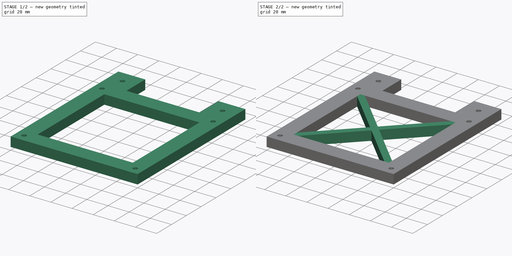
[diagram: build sequence overview — one tinted view per stage of 2, left to right]
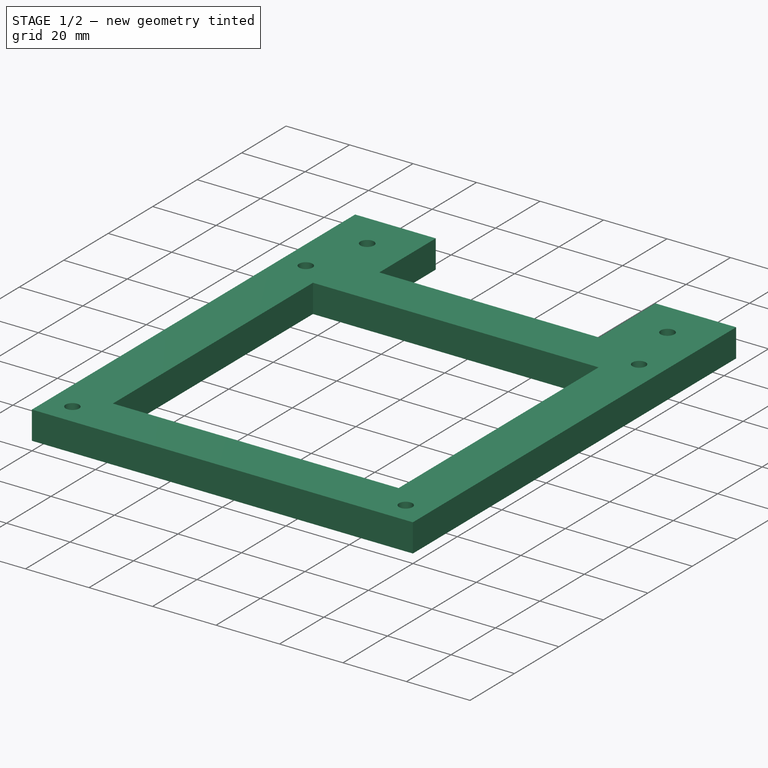
[diagram: stage 1 of 2 — iso view after this stage's code; geometry added in this stage tinted green]
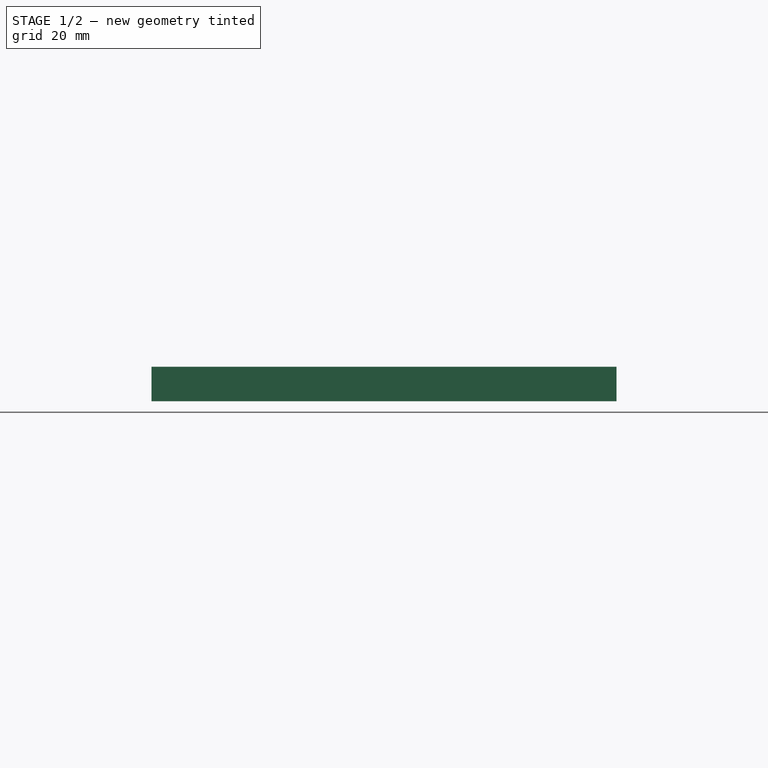
[diagram: stage 1 of 2 — front view after this stage's code; geometry added in this stage tinted green]
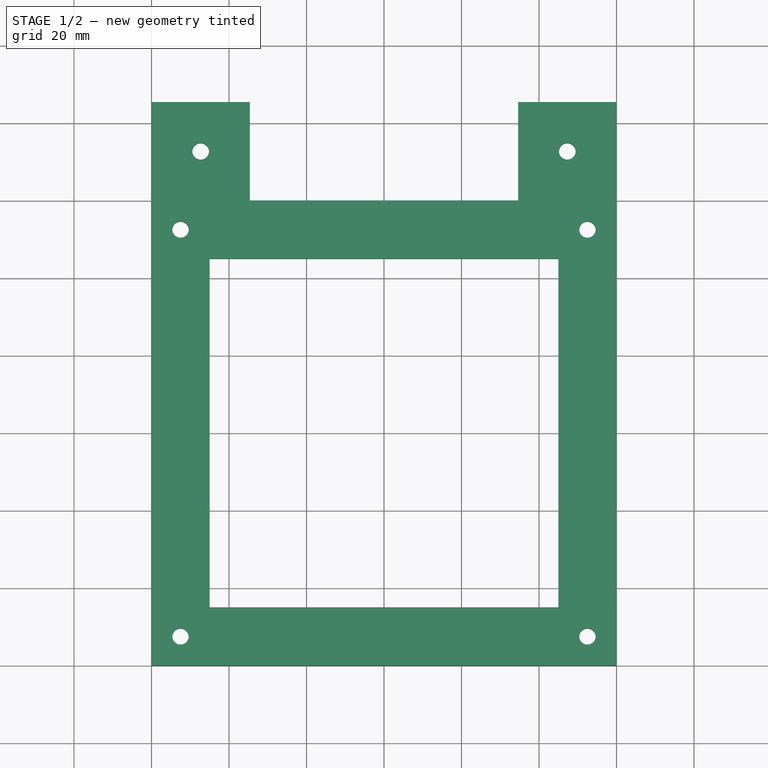
[diagram: stage 1 of 2 — top view after this stage's code; geometry added in this stage tinted green]
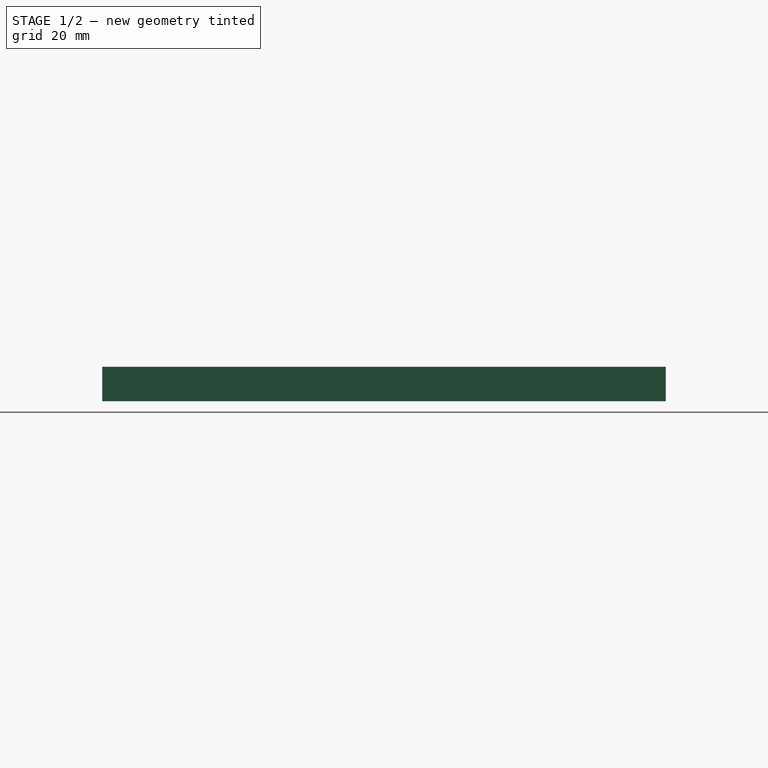
[diagram: stage 1 of 2 — right view after this stage's code; geometry added in this stage tinted green]
FCSTD DOCUMENT  (FreeCAD 0.20R29603 (Git))
Label: Single_Fan_Bracket
License: All rights reserved
LicenseURL: http://en.wikipedia.org/wiki/All_rights_reserved
objects: Sketcher::SketchObject×3, PartDesign::Pad×3, PartDesign::Body×1
note: 10 computed .brp shape members not serialized (recipe doc carries the construction recipe); baked Part::Feature solids carry a one-line shape summary decoded from their .brp

FEATURE [Sketcher::SketchObject] Sketch
  FullyConstrained = true
  MapMode = 5
  Support = -> [XY_Plane]
  sketch-geometry (19):
    g0: LineSegment StartX=-52.5 StartY=52.5 StartZ=0 EndX=52.5 EndY=52.5 EndZ=0
    g1: LineSegment StartX=52.5 StartY=52.5 StartZ=0 EndX=52.5 EndY=-52.5 EndZ=0
    g2: LineSegment StartX=52.5 StartY=-52.5 StartZ=0 EndX=-52.5 EndY=-52.5 EndZ=0
    g3: LineSegment StartX=-52.5 StartY=-52.5 StartZ=0 EndX=-52.5 EndY=52.5 EndZ=0
    g4: LineSegment StartX=-60 StartY=60 StartZ=0 EndX=60 EndY=60 EndZ=0
    g5: LineSegment StartX=60 StartY=60 StartZ=0 EndX=60 EndY=-60 EndZ=0
    g6: LineSegment StartX=60 StartY=-60 StartZ=0 EndX=-60 EndY=-60 EndZ=0
    g7: LineSegment StartX=-60 StartY=-60 StartZ=0 EndX=-60 EndY=60 EndZ=0
    g8: LineSegment StartX=-45 StartY=45 StartZ=0 EndX=45 EndY=45 EndZ=0
    g9: LineSegment StartX=45 StartY=45 StartZ=0 EndX=45 EndY=-45 EndZ=0
    g10: LineSegment StartX=45 StartY=-45 StartZ=0 EndX=-45 EndY=-45 EndZ=0
    g11: LineSegment StartX=-45 StartY=-45 StartZ=0 EndX=-45 EndY=45 EndZ=0
    g12: LineSegment StartX=-52.5 StartY=52.5 StartZ=0 EndX=-60 EndY=60 EndZ=0
    g13: LineSegment StartX=-52.5 StartY=52.5 StartZ=0 EndX=-45 EndY=45 EndZ=0
    g14: Circle CenterX=-52.5 CenterY=52.5 CenterZ=0 NormalX=0 NormalY=0 NormalZ=1 AngleXU=0 Radius=2.1082
    g15: Circle CenterX=52.5 CenterY=52.5 CenterZ=0 NormalX=0 NormalY=0 NormalZ=1 AngleXU=0 Radius=2.1082
    g16: Circle CenterX=-52.5 CenterY=-52.5 CenterZ=0 NormalX=0 NormalY=0 NormalZ=1 AngleXU=0 Radius=2.1082
    g17: Circle CenterX=52.5 CenterY=-52.5 CenterZ=0 NormalX=0 NormalY=0 NormalZ=1 AngleXU=0 Radius=2.1082
    g18: LineSegment StartX=45 StartY=45 StartZ=0 EndX=52.5 EndY=52.5 EndZ=0
  constraints (48):
    c: Coincident(g0,g1)
    c: Coincident(g1,g2)
    c: Coincident(g2,g3)
    c: Coincident(g3,g0)
    c: Horizontal(g0)
    c: Horizontal(g2)
    c: Vertical(g1)
    c: Vertical(g3)
    c: Symmetric(g2,g0,g-1)
    c: Coincident(g4,g5)
    c: Coincident(g5,g6)
    c: Coincident(g6,g7)
    c: Coincident(g7,g4)
    c: Horizontal(g4)
    c: Horizontal(g6)
    c: Vertical(g5)
    c: Vertical(g7)
    c: Symmetric(g6,g4,g-1)
    c: Equal(g0,g3)
    c: Equal(g4,g7)
    c: DistanceX(g0,g0) = 105
    c: DistanceX(g4,g4) = 120
    c: Coincident(g8,g9)
    c: Coincident(g9,g10)
    c: Coincident(g10,g11)
    c: Coincident(g11,g8)
    c: Horizontal(g8)
    c: Horizontal(g10)
    c: Vertical(g9)
    c: Vertical(g11)
    c: Coincident(g12,g0)
    c: Coincident(g12,g4)
    c: Coincident(g13,g12)
    c: Coincident(g13,g8)
    c: Equal(g13,g12)
    c: Angle(g13,g0) = 0.785398
    c: Coincident(g14,g0)
    c: Coincident(g15,g0)
    c: Coincident(g16,g2)
    c: Coincident(g17,g1)
    c: Diameter(g17) = 4.2164
    c: Equal(g15,g14)
    c: Equal(g14,g16)
    c: Equal(g16,g17)
    c: Equal(g8,g11)
    c: Coincident(g18,g8)
    c: Coincident(g18,g15)
    c: Equal(g18,g13)
FEATURE [PartDesign::Pad] Pad
  Direction = (0,0,1)
  Length = 8.89
  Length2 = 10
  Profile = -> Sketch
  ReferenceAxis = -> Sketch [N_Axis]
  Type = 0
FEATURE [Sketcher::SketchObject] Sketch001
  ExternalGeometry = -> [Pad]
  FullyConstrained = true
  MapMode = 5
  Placement = pos=(0,0,0) rot=(1,0,0;3.14159rad)
  Support = -> [Pad]
  sketch-geometry (10):
    g0: Circle CenterX=-47.3 CenterY=-72.7 CenterZ=0 NormalX=0 NormalY=0 NormalZ=1 AngleXU=0 Radius=2.1463
    g1: Circle CenterX=47.3 CenterY=-72.7 CenterZ=0 NormalX=0 NormalY=0 NormalZ=1 AngleXU=0 Radius=2.1463
    g2: LineSegment StartX=-60 StartY=-60 StartZ=0 EndX=-34.6 EndY=-60 EndZ=0
    g3: LineSegment StartX=-34.6 StartY=-60 StartZ=0 EndX=-34.6 EndY=-85.4 EndZ=0
    g4: LineSegment StartX=-34.6 StartY=-85.4 StartZ=0 EndX=-60 EndY=-85.4 EndZ=0
    g5: LineSegment StartX=-60 StartY=-85.4 StartZ=0 EndX=-60 EndY=-60 EndZ=0
    g6: LineSegment StartX=60 StartY=-60 StartZ=0 EndX=34.6 EndY=-60 EndZ=0
    g7: LineSegment StartX=34.6 StartY=-60 StartZ=0 EndX=34.6 EndY=-85.4 EndZ=0
    g8: LineSegment StartX=34.6 StartY=-85.4 StartZ=0 EndX=60 EndY=-85.4 EndZ=0
    g9: LineSegment StartX=60 StartY=-85.4 StartZ=0 EndX=60 EndY=-60 EndZ=0
  constraints (26):
    c: Equal(g0,g1)
    c: Diameter(g0) = 4.2926
    c: Symmetric(g0,g1,g-2)
    c: Coincident(g2,g3)
    c: Coincident(g3,g4)
    c: Coincident(g4,g5)
    c: Coincident(g5,g2)
    c: Horizontal(g2)
    c: Horizontal(g4)
    c: Vertical(g3)
    c: Vertical(g5)
    c: Coincident(g2,g-4)
    c: Coincident(g6,g7)
    c: Coincident(g7,g8)
    c: Coincident(g8,g9)
    c: Coincident(g9,g6)
    c: Horizontal(g6)
    c: Horizontal(g8)
    c: Vertical(g7)
    c: Vertical(g9)
    c: Coincident(g6,g-5)
    c: Equal(g4,g8)
    c: Equal(g5,g4)
    c: Equal(g7,g8)
    c: Symmetric(g2,g3,g0)
    c: DistanceX(g4,g4) = 25.4
FEATURE [PartDesign::Pad] Pad001
  BaseFeature = -> Pad
  Direction = (0,0,-1)
  Length = 8.89
  Length2 = 10
  Profile = -> Sketch001
  ReferenceAxis = -> Sketch001 [N_Axis]
  Reversed = true
  Type = 0
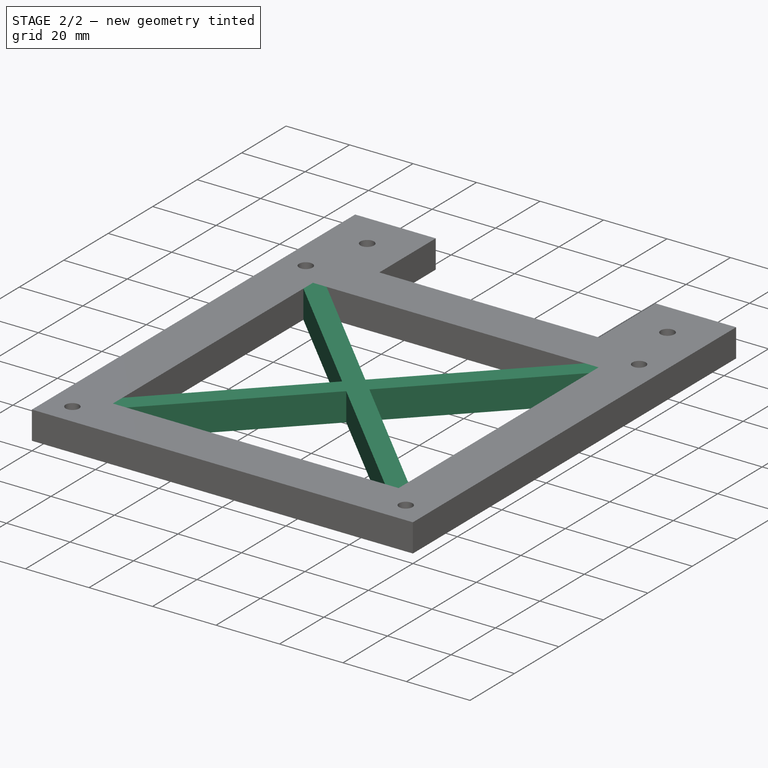
[diagram: stage 2 of 2 — iso view after this stage's code; geometry added in this stage tinted green]
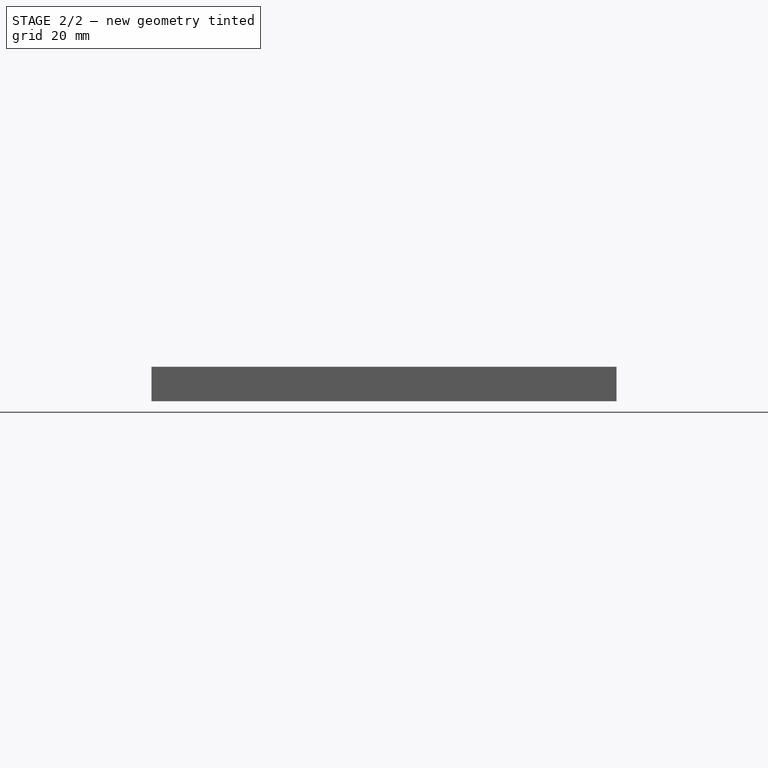
[diagram: stage 2 of 2 — front view after this stage's code; geometry added in this stage tinted green]
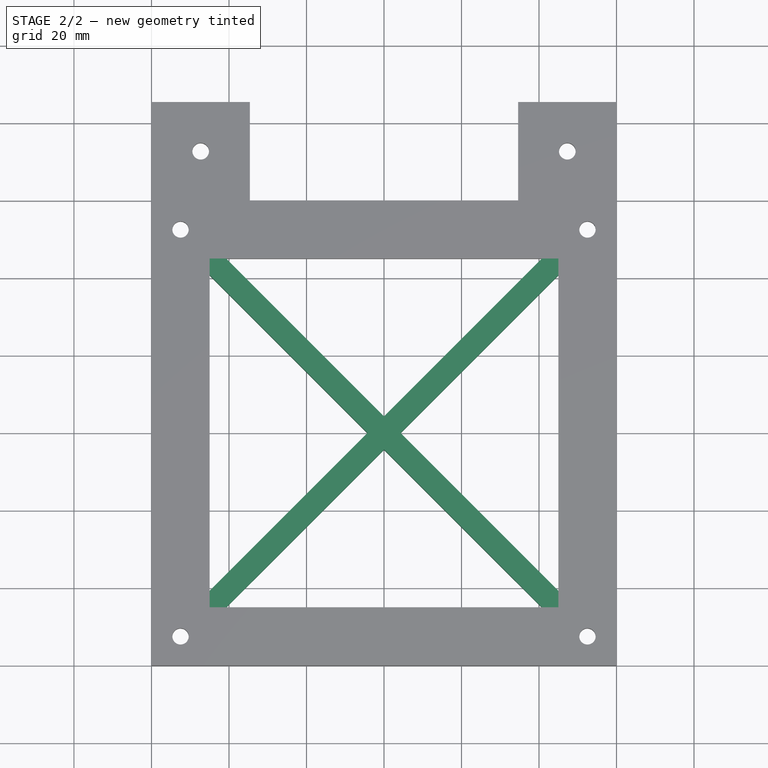
[diagram: stage 2 of 2 — top view after this stage's code; geometry added in this stage tinted green]
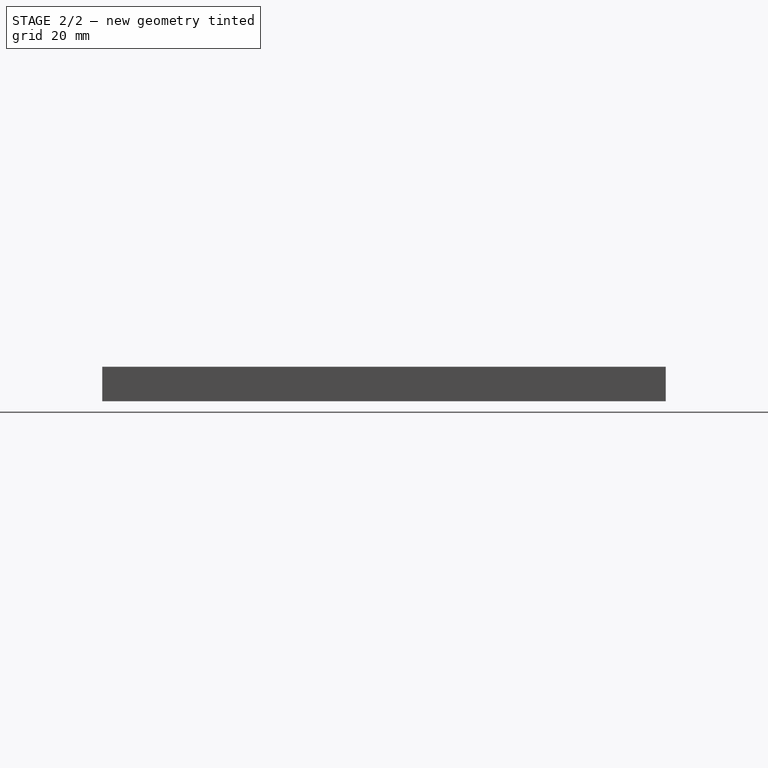
[diagram: stage 2 of 2 — right view after this stage's code; geometry added in this stage tinted green]
FEATURE [Sketcher::SketchObject] Sketch002
  ExternalGeometry = -> [Pad001]
  FullyConstrained = true
  MapMode = 5
  Placement = pos=(0,0,0) rot=(1,0,0;3.14159rad)
  Support = -> [Pad001]
  sketch-geometry (18):
    g0: LineSegment StartX=-45 StartY=45 StartZ=0 EndX=-40.7074 EndY=45 EndZ=0
    g1: LineSegment StartX=-45 StartY=45 StartZ=0 EndX=-45 EndY=40.7074 EndZ=0
    g2: LineSegment StartX=45 StartY=45 StartZ=0 EndX=40.7074 EndY=45 EndZ=0
    g3: LineSegment StartX=45 StartY=45 StartZ=0 EndX=45 EndY=40.7074 EndZ=0
    g4: LineSegment StartX=-45 StartY=-45 StartZ=0 EndX=-40.7074 EndY=-45 EndZ=0
    g5: LineSegment StartX=-45 StartY=-45 StartZ=0 EndX=-45 EndY=-40.7074 EndZ=0
    g6: LineSegment StartX=45 StartY=-45 StartZ=0 EndX=45 EndY=-40.7074 EndZ=0
    g7: LineSegment StartX=45 StartY=-45 StartZ=0 EndX=40.7074 EndY=-45 EndZ=0
    g8: LineSegment StartX=-45 StartY=-40.7074 StartZ=0 EndX=-4.2926 EndY=0 EndZ=0
    g9: LineSegment StartX=-40.7074 StartY=-45 StartZ=0 EndX=0 EndY=-4.2926 EndZ=0
    g10: LineSegment StartX=40.7074 StartY=-45 StartZ=0 EndX=0 EndY=-4.2926 EndZ=0
    g11: LineSegment StartX=45 StartY=-40.7074 StartZ=0 EndX=4.2926 EndY=0 EndZ=0
    g12: LineSegment StartX=4.2926 StartY=0 StartZ=0 EndX=45 EndY=40.7074 EndZ=0
    g13: LineSegment StartX=40.7074 StartY=45 StartZ=0 EndX=0 EndY=4.2926 EndZ=0
    g14: LineSegment StartX=0 StartY=4.2926 StartZ=0 EndX=-40.7074 EndY=45 EndZ=0
    g15: LineSegment StartX=-45 StartY=40.7074 StartZ=0 EndX=-4.2926 EndY=0 EndZ=0
    g16: LineSegment StartX=-4.2926 StartY=0 StartZ=0 EndX=4.2926 EndY=0 EndZ=0
    g17: LineSegment StartX=0 StartY=4.2926 StartZ=0 EndX=0 EndY=-4.2926 EndZ=0
  constraints (48):
    c: Coincident(g0,g-4)
    c: PointOnObject(g0,g-4)
    c: Coincident(g1,g0)
    c: PointOnObject(g1,g-3)
    c: Coincident(g2,g-5)
    c: PointOnObject(g2,g-4)
    c: Coincident(g3,g2)
    c: PointOnObject(g3,g-5)
    c: Coincident(g4,g-6)
    c: PointOnObject(g4,g-6)
    c: Coincident(g5,g4)
    c: PointOnObject(g5,g-3)
    c: Coincident(g6,g-6)
    c: PointOnObject(g6,g-5)
    c: Coincident(g7,g6)
    c: PointOnObject(g7,g-6)
    c: Equal(g0,g1)
    c: Equal(g1,g3)
    c: Equal(g3,g2)
    c: Equal(g2,g6)
    c: Equal(g6,g7)
    c: Equal(g7,g4)
    c: Equal(g4,g5)
    c: Coincident(g8,g5)
    c: PointOnObject(g8,g-1)
    c: Coincident(g9,g4)
    c: PointOnObject(g9,g-2)
    c: Coincident(g10,g7)
    c: Coincident(g10,g9)
    c: Coincident(g11,g6)
    c: PointOnObject(g11,g-1)
    c: Coincident(g12,g11)
    c: Coincident(g12,g3)
    c: Coincident(g13,g2)
    c: PointOnObject(g13,g-2)
    c: Coincident(g14,g0)
    c: Coincident(g15,g1)
    c: Coincident(g15,g8)
    c: Coincident(g14,g13)
    c: Parallel(g14,g15)
    c: Parallel(g15,g11)
    c: Parallel(g11,g10)
    c: Coincident(g16,g8)
    c: Coincident(g16,g11)
    c: Coincident(g17,g13)
    c: Coincident(g17,g9)
    c: Equal(g17,g16)
    c: DistanceX(g0,g0) = 4.2926
FEATURE [PartDesign::Pad] Pad002
  BaseFeature = -> Pad001
  Direction = (0,0,-1)
  Length = 8.89
  Length2 = 9.906
  Profile = -> Sketch002
  ReferenceAxis = -> Sketch002 [N_Axis]
  Reversed = true
  Type = 0
FEATURE [PartDesign::Body] Body  label="Single_Fan_Bracket"
  Group = -> [Sketch,Pad,Sketch001,Pad001,Sketch002,Pad002]
  Origin = -> Origin
  Tip = -> Pad002
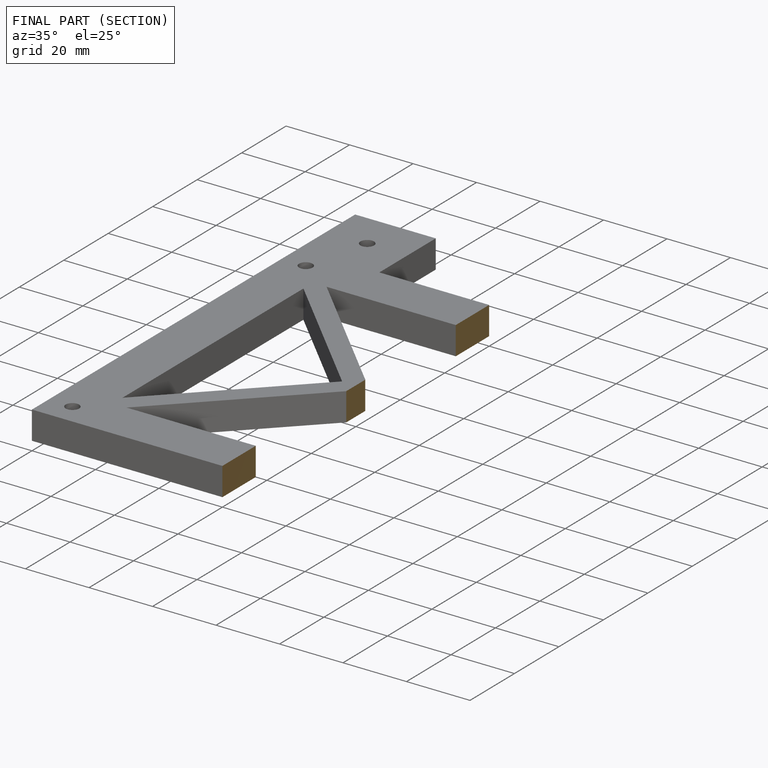
[diagram: finished part — half-section view (interior)]
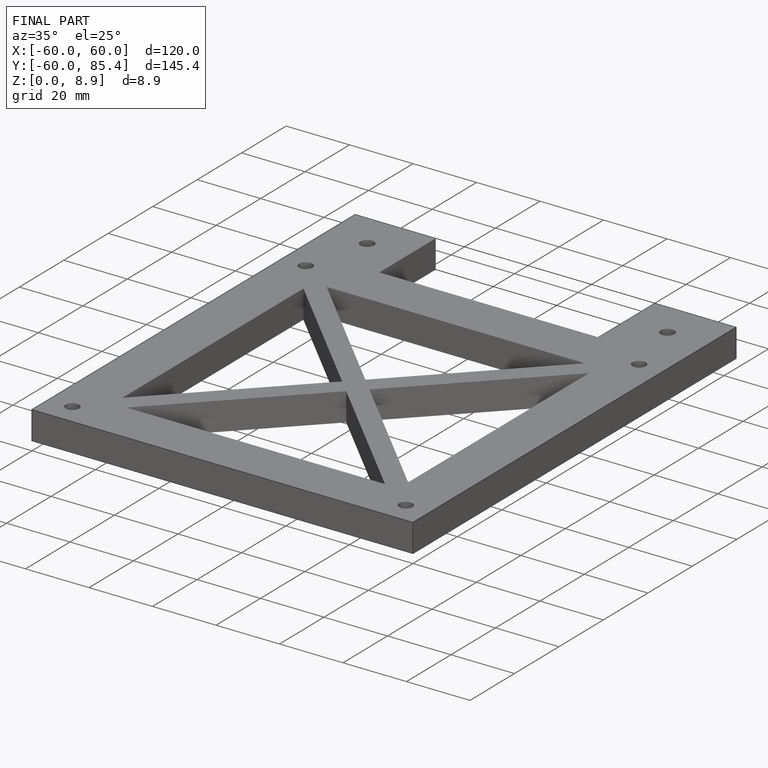
[diagram: finished part — iso view with bounding-box wireframe]
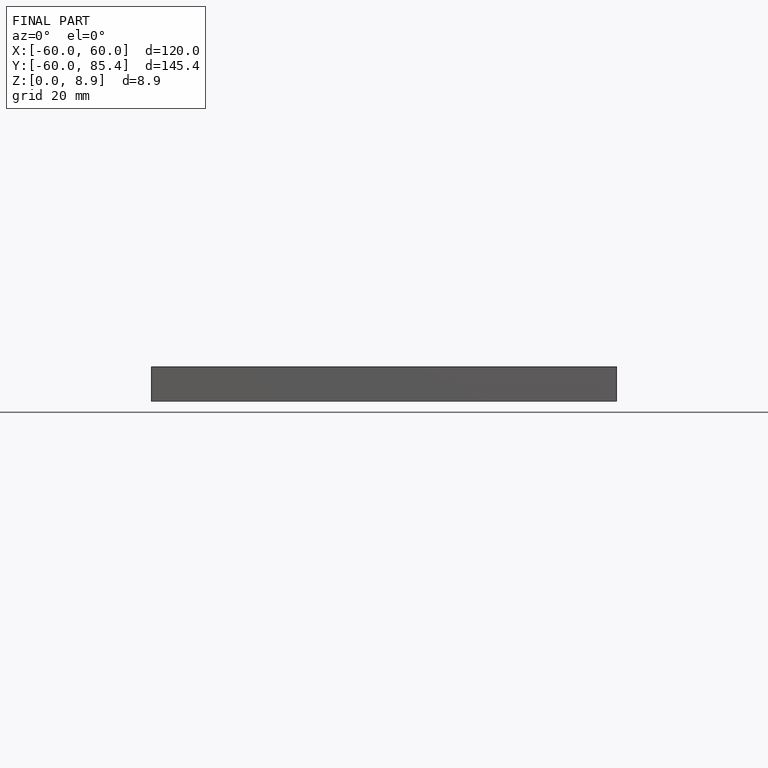
[diagram: finished part — front view with bounding-box wireframe]
